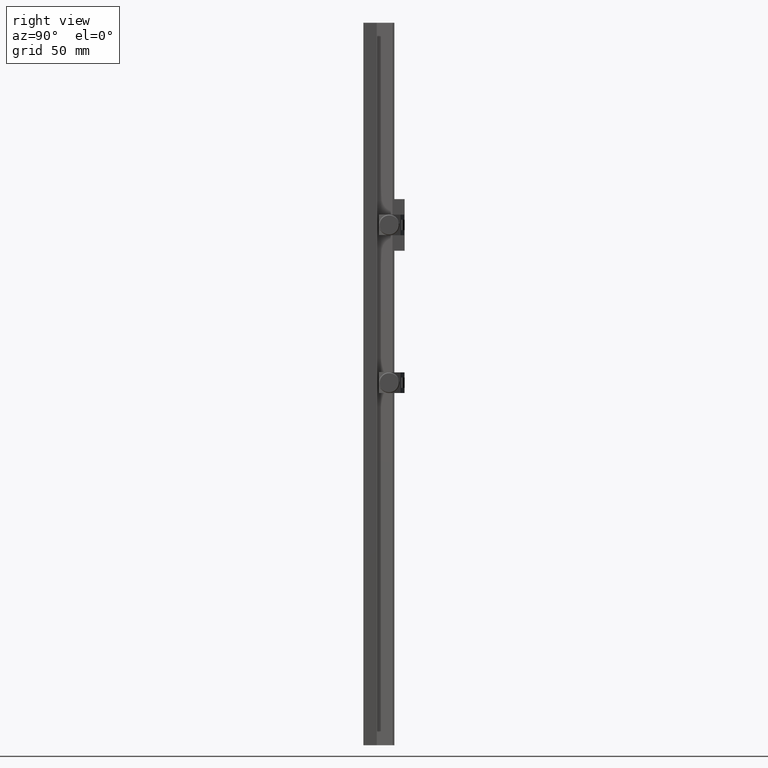
[diagram: clean part render]
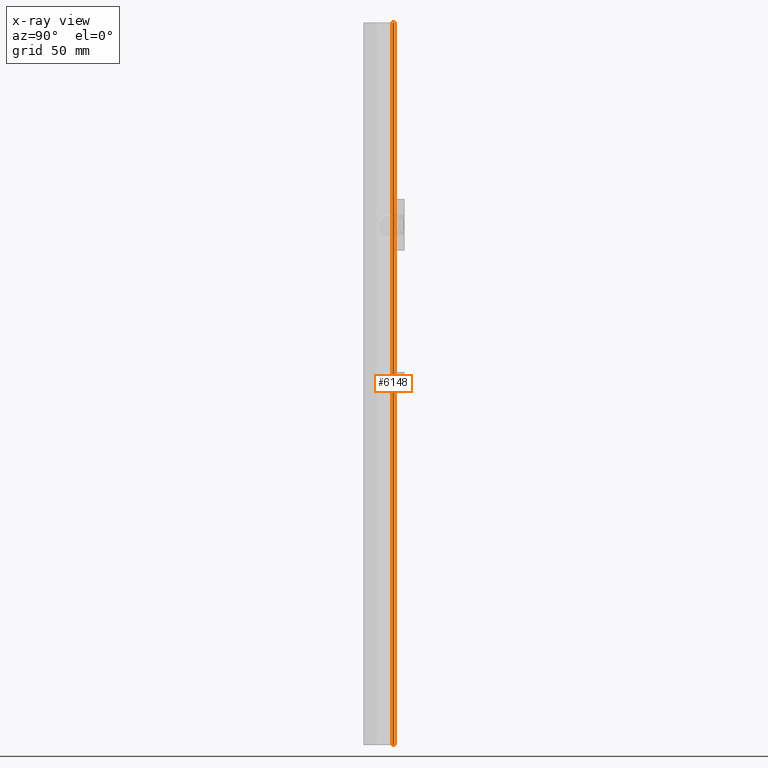
[diagram: x-ray — body ghosted, one internal face saturated and labeled with its STEP entity id]
A machine part, right view, then the same camera in x-ray: the body is ghosted and one INTERNAL B-rep face — a face not visible from any outside direction — is saturated and labeled: STEP entity #6148.
In plain terms, the highlighted planar face has unit normal (1, 0, 0).
Its self-contained STEP definition (entity closure, byte-faithful):
#139 = LINE ( 'NONE', #3799, #1576 ) ;
#200 = VECTOR ( 'NONE', #5133, 1000.000000000000000 ) ;
#275 = ORIENTED_EDGE ( 'NONE', *, *, #6745, .F. ) ;
#289 = CARTESIAN_POINT ( 'NONE',  ( -14.99999999999999822, 7.633974596215571395, 175.0000000000000000 ) ) ;
#518 = PLANE ( 'NONE',  #5299 ) ;
#1203 = ORIENTED_EDGE ( 'NONE', *, *, #2875, .F. ) ;
#1206 = LINE ( 'NONE', #2863, #1559 ) ;
#1559 = VECTOR ( 'NONE', #4463, 1000.000000000000000 ) ;
#1565 = CARTESIAN_POINT ( 'NONE',  ( -15.00000000000004441, 8.500000000000000000, 175.0000000000000000 ) ) ;
#1576 = VECTOR ( 'NONE', #6698, 1000.000000000000000 ) ;
#1898 = CARTESIAN_POINT ( 'NONE',  ( -14.99999999999999822, 7.633974596215567843, 175.0000000000000000 ) ) ;
#1988 = DIRECTION ( 'NONE',  ( 0.000000000000000000, 0.000000000000000000, 1.000000000000000000 ) ) ;
#2018 = VERTEX_POINT ( 'NONE', #6617 ) ;
#2087 = CARTESIAN_POINT ( 'NONE',  ( -15.00000000000004441, 8.500000000000000000, 175.0000000000000000 ) ) ;
#2153 = ORIENTED_EDGE ( 'NONE', *, *, #3089, .F. ) ;
#2214 = EDGE_CURVE ( 'NONE', #4275, #4516, #139, .T. ) ;
#2412 = VERTEX_POINT ( 'NONE', #3918 ) ;
#2689 = DIRECTION ( 'NONE',  ( -1.717114570520703492E-16, 1.000000000000000000, 0.000000000000000000 ) ) ;
#2863 = CARTESIAN_POINT ( 'NONE',  ( -15.00000000000000000, 14.43276648600719270, -175.0000000000000000 ) ) ;
#2875 = EDGE_CURVE ( 'NONE', #2018, #4516, #3652, .T. ) ;
#3089 = EDGE_CURVE ( 'NONE', #2412, #2018, #1206, .T. ) ;
#3218 = FACE_OUTER_BOUND ( 'NONE', #6908, .T. ) ;
#3652 = LINE ( 'NONE', #1565, #6920 ) ;
#3799 = CARTESIAN_POINT ( 'NONE',  ( -15.00000000000000000, 14.43276648600719270, 175.0000000000000000 ) ) ;
#3918 = CARTESIAN_POINT ( 'NONE',  ( -14.99999999999999822, 7.633974596215571395, -175.0000000000000000 ) ) ;
#4275 = VERTEX_POINT ( 'NONE', #289 ) ;
#4463 = DIRECTION ( 'NONE',  ( -1.717114570520703492E-16, 1.000000000000000000, -0.000000000000000000 ) ) ;
#4516 = VERTEX_POINT ( 'NONE', #2087 ) ;
#5133 = DIRECTION ( 'NONE',  ( 0.000000000000000000, 0.000000000000000000, -1.000000000000000000 ) ) ;
#5288 = DIRECTION ( 'NONE',  ( 1.000000000000000000, 1.717114570520703492E-16, 0.000000000000000000 ) ) ;
#5299 = AXIS2_PLACEMENT_3D ( 'NONE', #7049, #5288, #2689 ) ;
#6148 = ADVANCED_FACE ( 'NONE', ( #3218 ), #518, .F. ) ;
#6617 = CARTESIAN_POINT ( 'NONE',  ( -14.99999999999999645, 8.500000000000049738, -175.0000000000000000 ) ) ;
#6653 = ORIENTED_EDGE ( 'NONE', *, *, #2214, .T. ) ;
#6698 = DIRECTION ( 'NONE',  ( -1.717114570520703492E-16, 1.000000000000000000, -0.000000000000000000 ) ) ;
#6718 = LINE ( 'NONE', #1898, #200 ) ;
#6745 = EDGE_CURVE ( 'NONE', #4275, #2412, #6718, .T. ) ;
#6908 = EDGE_LOOP ( 'NONE', ( #6653, #1203, #2153, #275 ) ) ;
#6920 = VECTOR ( 'NONE', #1988, 1000.000000000000000 ) ;
#7049 = CARTESIAN_POINT ( 'NONE',  ( -15.00000000000000000, 14.43276648600719270, -175.0000000000000000 ) ) ;